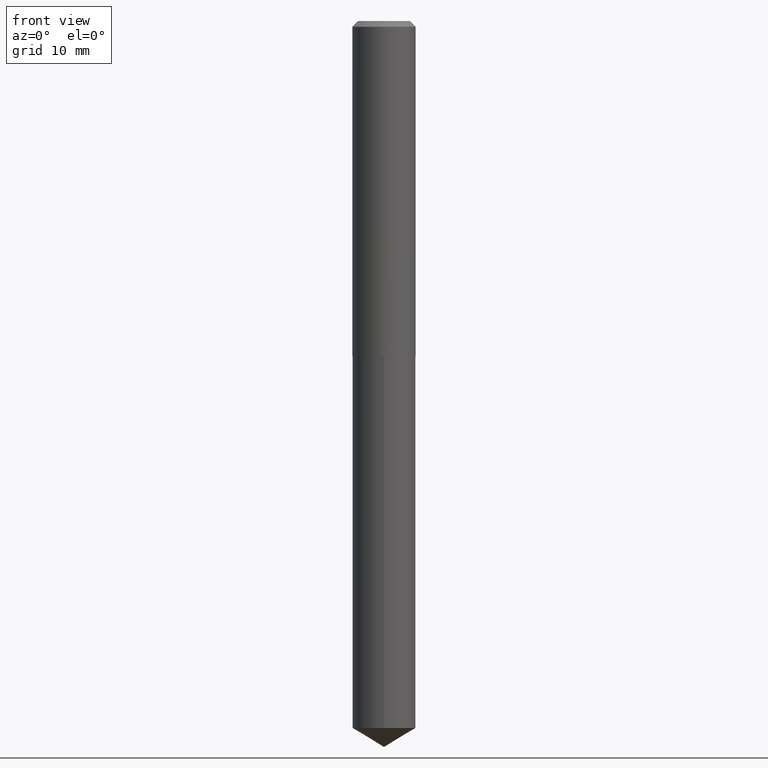
[diagram: clean part render]
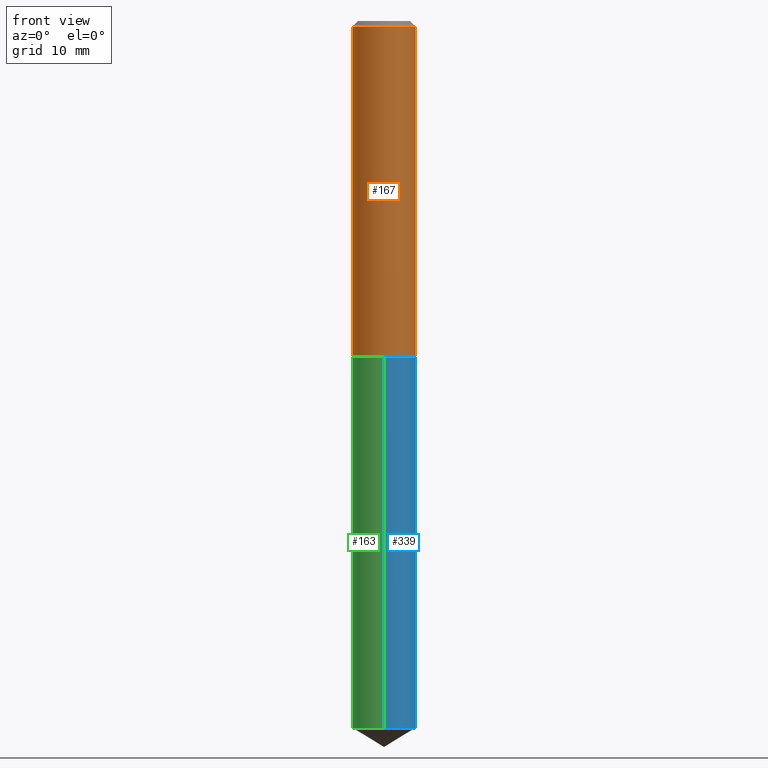
[diagram: same view with three faces highlighted in distinct colors, each labeled with its STEP entity id]
A machine part, front view with three faces highlighted in distinct colors.
Their STEP definitions:

[orange] entity #167 — the highlighted cylindrical surface (edge-blend (fillet) strip) has radius 4.4196 mm, axis along (-0, 0, 1).
#8 = VERTEX_POINT ( 'NONE', #337 ) ;
#30 = CIRCLE ( 'NONE', #303, 0.1740000000000001823 ) ;
#33 = CYLINDRICAL_SURFACE ( 'NONE', #122, 0.1740000000000000713 ) ;
#39 = VECTOR ( 'NONE', #370, 39.37007874015748143 ) ;
#50 = DIRECTION ( 'NONE',  ( 1.000000000000000000, -6.982962677686266711E-15, 0.000000000000000000 ) ) ;
#96 = VERTEX_POINT ( 'NONE', #332 ) ;
#106 = AXIS2_PLACEMENT_3D ( 'NONE', #204, #323, #50 ) ;
#108 = FACE_OUTER_BOUND ( 'NONE', #196, .T. ) ;
#117 = ORIENTED_EDGE ( 'NONE', *, *, #331, .F. ) ;
#122 = AXIS2_PLACEMENT_3D ( 'NONE', #226, #162, #328 ) ;
#131 = LINE ( 'NONE', #227, #39 ) ;
#144 = DIRECTION ( 'NONE',  ( 1.000000000000000000, -6.982962677686264344E-15, 0.000000000000000000 ) ) ;
#161 = VERTEX_POINT ( 'NONE', #313 ) ;
#162 = DIRECTION ( 'NONE',  ( -2.445468806185136597E-29, 3.491481338843145583E-15, 1.000000000000000000 ) ) ;
#167 = ADVANCED_FACE ( 'NONE', ( #108 ), #33, .T. ) ;
#177 = CARTESIAN_POINT ( 'NONE',  ( -0.1739999999999999880, -2.043465922453204373E-15, -0.03125000000000024286 ) ) ;
#186 = CARTESIAN_POINT ( 'NONE',  ( 0.1740000000000000713, -1.215035505917411055E-15, 8.484547589884932035E-30 ) ) ;
#191 = EDGE_CURVE ( 'NONE', #161, #8, #367, .T. ) ;
#196 = EDGE_LOOP ( 'NONE', ( #117, #321, #261, #282 ) ) ;
#204 = CARTESIAN_POINT ( 'NONE',  ( 7.642090019328611420E-31, -1.091087918388491499E-16, -0.03125000000000024286 ) ) ;
#226 = CARTESIAN_POINT ( 'NONE',  ( 0.000000000000000000, 0.000000000000000000, 0.000000000000000000 ) ) ;
#227 = CARTESIAN_POINT ( 'NONE',  ( -0.1740000000000000713, 1.236344360222574830E-15, -8.558947057043539962E-30 ) ) ;
#228 = VERTEX_POINT ( 'NONE', #177 ) ;
#247 = VECTOR ( 'NONE', #364, 39.37007874015748143 ) ;
#261 = ORIENTED_EDGE ( 'NONE', *, *, #191, .T. ) ;
#282 = ORIENTED_EDGE ( 'NONE', *, *, #359, .F. ) ;
#283 = DIRECTION ( 'NONE',  ( -2.445468806185136597E-29, 3.491481338843145583E-15, 1.000000000000000000 ) ) ;
#289 = EDGE_CURVE ( 'NONE', #96, #161, #30, .T. ) ;
#303 = AXIS2_PLACEMENT_3D ( 'NONE', #312, #283, #144 ) ;
#312 = CARTESIAN_POINT ( 'NONE',  ( 4.518003619427039369E-29, -6.450511773512711278E-15, -1.847499999999999920 ) ) ;
#313 = CARTESIAN_POINT ( 'NONE',  ( 0.1740000000000001823, -7.665547279430122726E-15, -1.847499999999999920 ) ) ;
#321 = ORIENTED_EDGE ( 'NONE', *, *, #289, .T. ) ;
#323 = DIRECTION ( 'NONE',  ( -2.445468806185136597E-29, 3.491481338843145583E-15, 1.000000000000000000 ) ) ;
#328 = DIRECTION ( 'NONE',  ( 1.000000000000000000, -6.982962677686267499E-15, 4.876176775795935793E-29 ) ) ;
#331 = EDGE_CURVE ( 'NONE', #96, #228, #131, .T. ) ;
#332 = CARTESIAN_POINT ( 'NONE',  ( -0.1740000000000001823, -5.214167413290135067E-15, -1.847499999999999920 ) ) ;
#337 = CARTESIAN_POINT ( 'NONE',  ( 0.1739999999999999880, -1.324144297756259366E-15, -0.03125000000000024286 ) ) ;
#359 = EDGE_CURVE ( 'NONE', #228, #8, #373, .T. ) ;
#364 = DIRECTION ( 'NONE',  ( -2.445468806185136877E-29, 3.491481338843145188E-15, 1.000000000000000000 ) ) ;
#367 = LINE ( 'NONE', #186, #247 ) ;
#370 = DIRECTION ( 'NONE',  ( -2.445468806185136877E-29, 3.491481338843145188E-15, 1.000000000000000000 ) ) ;
#373 = CIRCLE ( 'NONE', #106, 0.1739999999999999880 ) ;

[blue] entity #339 — the highlighted cylindrical surface (edge-blend (fillet) strip) has radius 4.4196 mm, axis along (-0, 0, 1).
#2 = LINE ( 'NONE', #126, #95 ) ;
#6 = DIRECTION ( 'NONE',  ( -2.445496631306099242E-29, 3.491441491686219687E-15, 1.000000000000000000 ) ) ;
#12 = AXIS2_PLACEMENT_3D ( 'NONE', #315, #40, #170 ) ;
#16 = EDGE_CURVE ( 'NONE', #230, #179, #263, .T. ) ;
#19 = DIRECTION ( 'NONE',  ( -2.445496631306099242E-29, 3.491441491686219687E-15, 1.000000000000000000 ) ) ;
#40 = DIRECTION ( 'NONE',  ( -2.445496631306099242E-29, 3.491441491686219687E-15, 1.000000000000000000 ) ) ;
#58 = CARTESIAN_POINT ( 'NONE',  ( 1.236344360222619006E-15, 0.1739999999999935210, -1.848000000000000309 ) ) ;
#59 = EDGE_CURVE ( 'NONE', #220, #179, #375, .T. ) ;
#69 = ORIENTED_EDGE ( 'NONE', *, *, #308, .F. ) ;
#76 = CYLINDRICAL_SURFACE ( 'NONE', #158, 0.1739999999999999880 ) ;
#95 = VECTOR ( 'NONE', #6, 39.37007874015748143 ) ;
#98 = CARTESIAN_POINT ( 'NONE',  ( 9.526259048570207178E-29, -1.360081027718808417E-14, -3.895450252289205384 ) ) ;
#102 = DIRECTION ( 'NONE',  ( -2.445496631306099242E-29, 3.491441491686219687E-15, 1.000000000000000000 ) ) ;
#109 = CARTESIAN_POINT ( 'NONE',  ( -1.215035505917314419E-15, -0.1740000000000135605, -3.895450252289204940 ) ) ;
#120 = FACE_OUTER_BOUND ( 'NONE', #231, .T. ) ;
#126 = CARTESIAN_POINT ( 'NONE',  ( -1.215035505917364906E-15, -0.1740000000000064273, -1.847999999999999199 ) ) ;
#137 = AXIS2_PLACEMENT_3D ( 'NONE', #98, #102, #281 ) ;
#156 = EDGE_CURVE ( 'NONE', #251, #220, #318, .T. ) ;
#158 = AXIS2_PLACEMENT_3D ( 'NONE', #381, #19, #237 ) ;
#170 = DIRECTION ( 'NONE',  ( -6.982962677686265133E-15, -1.000000000000000000, 3.140055165131337128E-15 ) ) ;
#175 = ORIENTED_EDGE ( 'NONE', *, *, #16, .F. ) ;
#179 = VERTEX_POINT ( 'NONE', #350 ) ;
#214 = DIRECTION ( 'NONE',  ( -2.445496631306099242E-29, 3.491441491686219687E-15, 1.000000000000000000 ) ) ;
#220 = VERTEX_POINT ( 'NONE', #335 ) ;
#230 = VERTEX_POINT ( 'NONE', #294 ) ;
#231 = EDGE_LOOP ( 'NONE', ( #255, #322, #175, #69 ) ) ;
#237 = DIRECTION ( 'NONE',  ( -6.982962677686265133E-15, -1.000000000000000000, 3.140055165131337128E-15 ) ) ;
#251 = VERTEX_POINT ( 'NONE', #109 ) ;
#255 = ORIENTED_EDGE ( 'NONE', *, *, #156, .T. ) ;
#263 = CIRCLE ( 'NONE', #12, 0.1739999999999999880 ) ;
#281 = DIRECTION ( 'NONE',  ( -6.982962677686265133E-15, -1.000000000000000000, 3.140055165131337128E-15 ) ) ;
#294 = CARTESIAN_POINT ( 'NONE',  ( -1.215035505917364906E-15, -0.1740000000000064273, -1.847999999999999199 ) ) ;
#308 = EDGE_CURVE ( 'NONE', #251, #230, #2, .T. ) ;
#315 = CARTESIAN_POINT ( 'NONE',  ( 4.519226353830132171E-29, -6.452257514182132781E-15, -1.847999999999999865 ) ) ;
#318 = CIRCLE ( 'NONE', #137, 0.1739999999999999880 ) ;
#322 = ORIENTED_EDGE ( 'NONE', *, *, #59, .T. ) ;
#330 = VECTOR ( 'NONE', #214, 39.37007874015748143 ) ;
#335 = CARTESIAN_POINT ( 'NONE',  ( 1.236344360222669296E-15, 0.1739999999999863600, -3.895450252289206272 ) ) ;
#339 = ADVANCED_FACE ( 'NONE', ( #120 ), #76, .T. ) ;
#350 = CARTESIAN_POINT ( 'NONE',  ( 1.236344360222669493E-15, 0.1739999999999935210, -1.848000000000000309 ) ) ;
#375 = LINE ( 'NONE', #58, #330 ) ;
#381 = CARTESIAN_POINT ( 'NONE',  ( 4.519226353830132171E-29, -6.452257514182132781E-15, -1.847999999999999865 ) ) ;

[green] entity #163 — the highlighted cylindrical surface (edge-blend (fillet) strip) has radius 4.4196 mm, axis along (-0, 0, 1).
#2 = LINE ( 'NONE', #126, #95 ) ;
#6 = DIRECTION ( 'NONE',  ( -2.445496631306099242E-29, 3.491441491686219687E-15, 1.000000000000000000 ) ) ;
#7 = DIRECTION ( 'NONE',  ( -2.445496631306099242E-29, 3.491441491686219687E-15, 1.000000000000000000 ) ) ;
#13 = ORIENTED_EDGE ( 'NONE', *, *, #316, .T. ) ;
#37 = AXIS2_PLACEMENT_3D ( 'NONE', #342, #7, #284 ) ;
#46 = ORIENTED_EDGE ( 'NONE', *, *, #59, .F. ) ;
#49 = DIRECTION ( 'NONE',  ( -6.982962677686265133E-15, -1.000000000000000000, 3.140055165131337128E-15 ) ) ;
#58 = CARTESIAN_POINT ( 'NONE',  ( 1.236344360222619006E-15, 0.1739999999999935210, -1.848000000000000309 ) ) ;
#59 = EDGE_CURVE ( 'NONE', #220, #179, #375, .T. ) ;
#95 = VECTOR ( 'NONE', #6, 39.37007874015748143 ) ;
#100 = DIRECTION ( 'NONE',  ( -2.445496631306099242E-29, 3.491441491686219687E-15, 1.000000000000000000 ) ) ;
#109 = CARTESIAN_POINT ( 'NONE',  ( -1.215035505917314419E-15, -0.1740000000000135605, -3.895450252289204940 ) ) ;
#126 = CARTESIAN_POINT ( 'NONE',  ( -1.215035505917364906E-15, -0.1740000000000064273, -1.847999999999999199 ) ) ;
#127 = DIRECTION ( 'NONE',  ( -6.982962677686265133E-15, -1.000000000000000000, 3.140055165131337128E-15 ) ) ;
#132 = CARTESIAN_POINT ( 'NONE',  ( 9.526259048570207178E-29, -1.360081027718808417E-14, -3.895450252289205384 ) ) ;
#142 = CARTESIAN_POINT ( 'NONE',  ( 4.519226353830132171E-29, -6.452257514182132781E-15, -1.847999999999999865 ) ) ;
#146 = ORIENTED_EDGE ( 'NONE', *, *, #308, .T. ) ;
#163 = ADVANCED_FACE ( 'NONE', ( #222 ), #168, .T. ) ;
#168 = CYLINDRICAL_SURFACE ( 'NONE', #37, 0.1739999999999999880 ) ;
#173 = ORIENTED_EDGE ( 'NONE', *, *, #221, .F. ) ;
#179 = VERTEX_POINT ( 'NONE', #350 ) ;
#181 = AXIS2_PLACEMENT_3D ( 'NONE', #132, #100, #127 ) ;
#188 = AXIS2_PLACEMENT_3D ( 'NONE', #142, #266, #49 ) ;
#193 = CIRCLE ( 'NONE', #188, 0.1739999999999999880 ) ;
#214 = DIRECTION ( 'NONE',  ( -2.445496631306099242E-29, 3.491441491686219687E-15, 1.000000000000000000 ) ) ;
#220 = VERTEX_POINT ( 'NONE', #335 ) ;
#221 = EDGE_CURVE ( 'NONE', #179, #230, #193, .T. ) ;
#222 = FACE_OUTER_BOUND ( 'NONE', #249, .T. ) ;
#230 = VERTEX_POINT ( 'NONE', #294 ) ;
#249 = EDGE_LOOP ( 'NONE', ( #46, #13, #146, #173 ) ) ;
#251 = VERTEX_POINT ( 'NONE', #109 ) ;
#266 = DIRECTION ( 'NONE',  ( -2.445496631306099242E-29, 3.491441491686219687E-15, 1.000000000000000000 ) ) ;
#284 = DIRECTION ( 'NONE',  ( -6.982962677686265133E-15, -1.000000000000000000, 3.140055165131337128E-15 ) ) ;
#294 = CARTESIAN_POINT ( 'NONE',  ( -1.215035505917364906E-15, -0.1740000000000064273, -1.847999999999999199 ) ) ;
#308 = EDGE_CURVE ( 'NONE', #251, #230, #2, .T. ) ;
#316 = EDGE_CURVE ( 'NONE', #220, #251, #386, .T. ) ;
#330 = VECTOR ( 'NONE', #214, 39.37007874015748143 ) ;
#335 = CARTESIAN_POINT ( 'NONE',  ( 1.236344360222669296E-15, 0.1739999999999863600, -3.895450252289206272 ) ) ;
#342 = CARTESIAN_POINT ( 'NONE',  ( 4.519226353830132171E-29, -6.452257514182132781E-15, -1.847999999999999865 ) ) ;
#350 = CARTESIAN_POINT ( 'NONE',  ( 1.236344360222669493E-15, 0.1739999999999935210, -1.848000000000000309 ) ) ;
#375 = LINE ( 'NONE', #58, #330 ) ;
#386 = CIRCLE ( 'NONE', #181, 0.1739999999999999880 ) ;